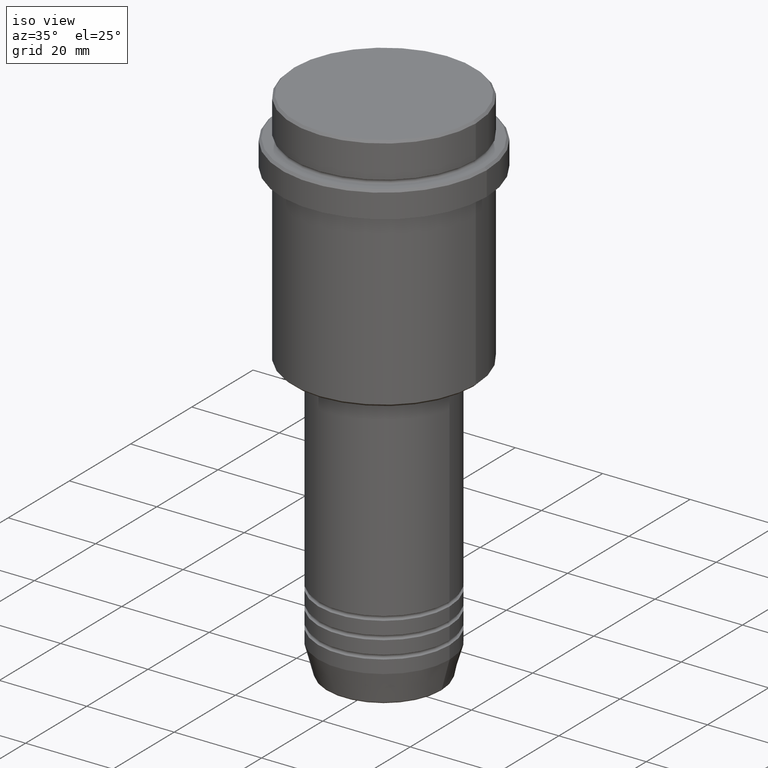
[diagram: clean part render]
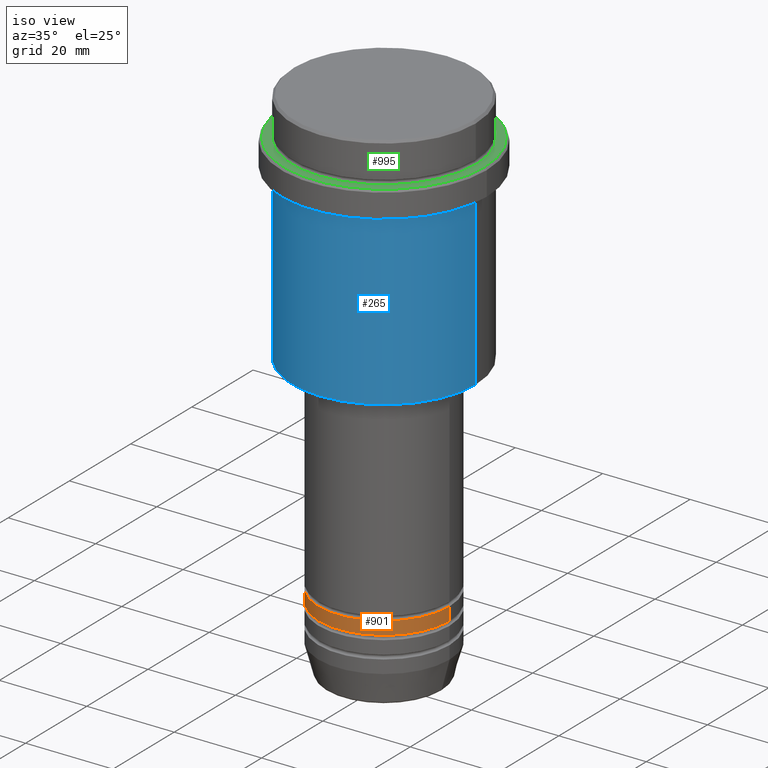
[diagram: same view with three faces highlighted in distinct colors, each labeled with its STEP entity id]
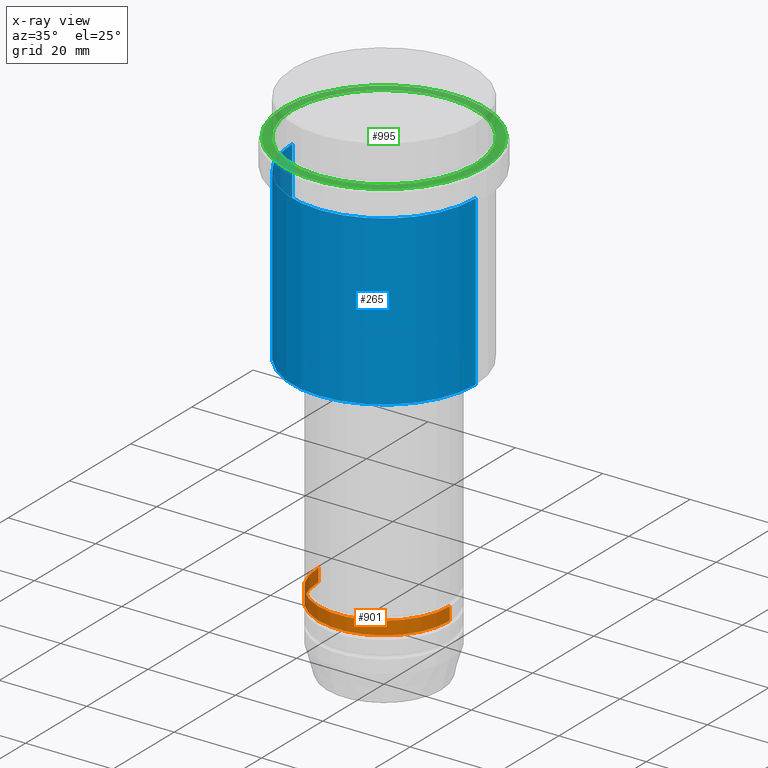
[diagram: x-ray of the same camera — body ghosted, the three highlighted faces saturated]
A machine part, iso view with three faces highlighted in distinct colors.
The next image is the same camera in x-ray (body ghosted, the three faces saturated) — at least one of them is partly hidden behind the body in this view.
Their STEP definitions:

[orange] entity #901 — the highlighted cylindrical surface (partial cylindrical patch) has radius 15 mm, axis along (-0, -0, 1).
#8 = DIRECTION ( 'NONE',  ( 1.000000000000000000, 0.000000000000000000, 0.000000000000000000 ) ) ;
#28 = CARTESIAN_POINT ( 'NONE',  ( 15.00000000000000000, 0.000000000000000000, -104.9999999999999005 ) ) ;
#72 = DIRECTION ( 'NONE',  ( -0.000000000000000000, -0.000000000000000000, 1.000000000000000000 ) ) ;
#77 = VERTEX_POINT ( 'NONE', #28 ) ;
#112 = VECTOR ( 'NONE', #72, 1000.000000000000000 ) ;
#183 = CIRCLE ( 'NONE', #803, 15.00000000000000000 ) ;
#203 = EDGE_CURVE ( 'NONE', #77, #865, #1148, .T. ) ;
#224 = CYLINDRICAL_SURFACE ( 'NONE', #643, 15.00000000000000000 ) ;
#237 = CARTESIAN_POINT ( 'NONE',  ( 0.000000000000000000, 0.000000000000000000, -104.9999999999999005 ) ) ;
#239 = VERTEX_POINT ( 'NONE', #1385 ) ;
#273 = EDGE_CURVE ( 'NONE', #1222, #239, #417, .T. ) ;
#341 = VECTOR ( 'NONE', #952, 1000.000000000000000 ) ;
#388 = ORIENTED_EDGE ( 'NONE', *, *, #273, .F. ) ;
#397 = ORIENTED_EDGE ( 'NONE', *, *, #1354, .T. ) ;
#417 = LINE ( 'NONE', #630, #112 ) ;
#448 = DIRECTION ( 'NONE',  ( 1.000000000000000000, 0.000000000000000000, 0.000000000000000000 ) ) ;
#536 = FACE_OUTER_BOUND ( 'NONE', #1305, .T. ) ;
#599 = CIRCLE ( 'NONE', #939, 15.00000000000000000 ) ;
#630 = CARTESIAN_POINT ( 'NONE',  ( -15.00000000000000000, 1.836970198721029589E-15, 0.000000000000000000 ) ) ;
#643 = AXIS2_PLACEMENT_3D ( 'NONE', #780, #1091, #1322 ) ;
#654 = DIRECTION ( 'NONE',  ( -0.000000000000000000, -0.000000000000000000, 1.000000000000000000 ) ) ;
#780 = CARTESIAN_POINT ( 'NONE',  ( 0.000000000000000000, 0.000000000000000000, 0.000000000000000000 ) ) ;
#803 = AXIS2_PLACEMENT_3D ( 'NONE', #1112, #654, #448 ) ;
#833 = CARTESIAN_POINT ( 'NONE',  ( 15.00000000000000000, 0.000000000000000000, 0.000000000000000000 ) ) ;
#865 = VERTEX_POINT ( 'NONE', #1337 ) ;
#877 = EDGE_CURVE ( 'NONE', #239, #865, #183, .T. ) ;
#895 = DIRECTION ( 'NONE',  ( -0.000000000000000000, -0.000000000000000000, 1.000000000000000000 ) ) ;
#901 = ADVANCED_FACE ( 'NONE', ( #536 ), #224, .T. ) ;
#939 = AXIS2_PLACEMENT_3D ( 'NONE', #237, #895, #8 ) ;
#941 = ORIENTED_EDGE ( 'NONE', *, *, #877, .F. ) ;
#952 = DIRECTION ( 'NONE',  ( -0.000000000000000000, -0.000000000000000000, 1.000000000000000000 ) ) ;
#967 = CARTESIAN_POINT ( 'NONE',  ( -15.00000000000000000, 1.836970198721029589E-15, -104.9999999999999005 ) ) ;
#1045 = ORIENTED_EDGE ( 'NONE', *, *, #203, .T. ) ;
#1091 = DIRECTION ( 'NONE',  ( -0.000000000000000000, -0.000000000000000000, 1.000000000000000000 ) ) ;
#1112 = CARTESIAN_POINT ( 'NONE',  ( 0.000000000000000000, 0.000000000000000000, -101.9999999999999005 ) ) ;
#1148 = LINE ( 'NONE', #833, #341 ) ;
#1222 = VERTEX_POINT ( 'NONE', #967 ) ;
#1305 = EDGE_LOOP ( 'NONE', ( #388, #397, #1045, #941 ) ) ;
#1322 = DIRECTION ( 'NONE',  ( 1.000000000000000000, 0.000000000000000000, 0.000000000000000000 ) ) ;
#1337 = CARTESIAN_POINT ( 'NONE',  ( 15.00000000000000000, 0.000000000000000000, -101.9999999999999005 ) ) ;
#1354 = EDGE_CURVE ( 'NONE', #1222, #77, #599, .T. ) ;
#1385 = CARTESIAN_POINT ( 'NONE',  ( -15.00000000000000000, 1.836970198721029589E-15, -101.9999999999999005 ) ) ;

[blue] entity #265 — the highlighted cylindrical surface (partial cylindrical patch) has radius 21 mm, axis along (-0, -0, 1).
#39 = DIRECTION ( 'NONE',  ( -0.000000000000000000, -0.000000000000000000, 1.000000000000000000 ) ) ;
#47 = AXIS2_PLACEMENT_3D ( 'NONE', #1341, #911, #356 ) ;
#68 = CARTESIAN_POINT ( 'NONE',  ( -21.00000000000000000, 2.571758278209441661E-15, 0.000000000000000000 ) ) ;
#111 = CARTESIAN_POINT ( 'NONE',  ( 0.000000000000000000, 0.000000000000000000, -16.00000000000000355 ) ) ;
#122 = CARTESIAN_POINT ( 'NONE',  ( -21.00000000000000000, 2.571758278209441661E-15, -16.00000000000000355 ) ) ;
#132 = CARTESIAN_POINT ( 'NONE',  ( 21.00000000000000000, 0.000000000000000000, -54.49999999999999289 ) ) ;
#133 = DIRECTION ( 'NONE',  ( 1.000000000000000000, 0.000000000000000000, 0.000000000000000000 ) ) ;
#149 = EDGE_CURVE ( 'NONE', #947, #427, #499, .T. ) ;
#165 = ORIENTED_EDGE ( 'NONE', *, *, #728, .F. ) ;
#192 = DIRECTION ( 'NONE',  ( -0.000000000000000000, -0.000000000000000000, 1.000000000000000000 ) ) ;
#258 = ORIENTED_EDGE ( 'NONE', *, *, #149, .T. ) ;
#265 = ADVANCED_FACE ( 'NONE', ( #1155 ), #1274, .T. ) ;
#356 = DIRECTION ( 'NONE',  ( -1.000000000000000000, 0.000000000000000000, 0.000000000000000000 ) ) ;
#423 = LINE ( 'NONE', #68, #502 ) ;
#427 = VERTEX_POINT ( 'NONE', #132 ) ;
#499 = CIRCLE ( 'NONE', #47, 21.00000000000000000 ) ;
#502 = VECTOR ( 'NONE', #1075, 1000.000000000000000 ) ;
#517 = EDGE_CURVE ( 'NONE', #427, #811, #596, .T. ) ;
#524 = VECTOR ( 'NONE', #39, 1000.000000000000000 ) ;
#544 = DIRECTION ( 'NONE',  ( -0.000000000000000000, -0.000000000000000000, 1.000000000000000000 ) ) ;
#596 = LINE ( 'NONE', #1017, #524 ) ;
#728 = EDGE_CURVE ( 'NONE', #947, #1277, #423, .T. ) ;
#741 = ORIENTED_EDGE ( 'NONE', *, *, #517, .T. ) ;
#811 = VERTEX_POINT ( 'NONE', #1395 ) ;
#839 = CARTESIAN_POINT ( 'NONE',  ( 0.000000000000000000, 0.000000000000000000, 0.000000000000000000 ) ) ;
#871 = AXIS2_PLACEMENT_3D ( 'NONE', #111, #544, #133 ) ;
#885 = EDGE_LOOP ( 'NONE', ( #165, #258, #741, #1094 ) ) ;
#911 = DIRECTION ( 'NONE',  ( -0.000000000000000000, -0.000000000000000000, 1.000000000000000000 ) ) ;
#915 = CIRCLE ( 'NONE', #871, 21.00000000000000000 ) ;
#929 = AXIS2_PLACEMENT_3D ( 'NONE', #839, #192, #1265 ) ;
#947 = VERTEX_POINT ( 'NONE', #1224 ) ;
#1017 = CARTESIAN_POINT ( 'NONE',  ( 21.00000000000000000, 0.000000000000000000, 0.000000000000000000 ) ) ;
#1075 = DIRECTION ( 'NONE',  ( -0.000000000000000000, -0.000000000000000000, 1.000000000000000000 ) ) ;
#1094 = ORIENTED_EDGE ( 'NONE', *, *, #1300, .F. ) ;
#1155 = FACE_OUTER_BOUND ( 'NONE', #885, .T. ) ;
#1224 = CARTESIAN_POINT ( 'NONE',  ( -21.00000000000000000, 2.571758278209441661E-15, -54.49999999999999289 ) ) ;
#1265 = DIRECTION ( 'NONE',  ( 1.000000000000000000, 0.000000000000000000, 0.000000000000000000 ) ) ;
#1274 = CYLINDRICAL_SURFACE ( 'NONE', #929, 21.00000000000000000 ) ;
#1277 = VERTEX_POINT ( 'NONE', #122 ) ;
#1300 = EDGE_CURVE ( 'NONE', #1277, #811, #915, .T. ) ;
#1341 = CARTESIAN_POINT ( 'NONE',  ( 0.000000000000000000, 0.000000000000000000, -54.49999999999999289 ) ) ;
#1395 = CARTESIAN_POINT ( 'NONE',  ( 21.00000000000000000, 0.000000000000000000, -16.00000000000000355 ) ) ;

[green] entity #995 — the highlighted planar face has unit normal (0, -0, 1).
#9 = EDGE_LOOP ( 'NONE', ( #1327, #1394 ) ) ;
#88 = CARTESIAN_POINT ( 'NONE',  ( 0.000000000000000000, 0.000000000000000000, -9.000000000000000000 ) ) ;
#116 = CARTESIAN_POINT ( 'NONE',  ( 22.99999999999998224, 2.847303808017595350E-15, -9.000000000000000000 ) ) ;
#124 = VERTEX_POINT ( 'NONE', #584 ) ;
#139 = CIRCLE ( 'NONE', #688, 20.99999999999999289 ) ;
#151 = EDGE_LOOP ( 'NONE', ( #1057, #195 ) ) ;
#178 = DIRECTION ( 'NONE',  ( 1.000000000000000000, 0.000000000000000000, 0.000000000000000000 ) ) ;
#195 = ORIENTED_EDGE ( 'NONE', *, *, #1089, .T. ) ;
#211 = CARTESIAN_POINT ( 'NONE',  ( -20.99999999999999289, 2.571758278209440872E-15, -9.000000000000000000 ) ) ;
#233 = CIRCLE ( 'NONE', #644, 22.99999999999998224 ) ;
#276 = AXIS2_PLACEMENT_3D ( 'NONE', #690, #900, #1040 ) ;
#290 = CARTESIAN_POINT ( 'NONE',  ( 0.000000000000000000, 0.000000000000000000, -9.000000000000000000 ) ) ;
#487 = CARTESIAN_POINT ( 'NONE',  ( 0.000000000000000000, 20.49999999999999645, -9.000000000000000000 ) ) ;
#492 = PLANE ( 'NONE',  #547 ) ;
#514 = DIRECTION ( 'NONE',  ( -0.000000000000000000, -0.000000000000000000, 1.000000000000000000 ) ) ;
#523 = EDGE_CURVE ( 'NONE', #796, #956, #1192, .T. ) ;
#541 = DIRECTION ( 'NONE',  ( 1.000000000000000000, 0.000000000000000000, 0.000000000000000000 ) ) ;
#547 = AXIS2_PLACEMENT_3D ( 'NONE', #487, #898, #1022 ) ;
#563 = CARTESIAN_POINT ( 'NONE',  ( 0.000000000000000000, 0.000000000000000000, -9.000000000000000000 ) ) ;
#579 = FACE_BOUND ( 'NONE', #9, .T. ) ;
#584 = CARTESIAN_POINT ( 'NONE',  ( 20.99999999999999289, 0.000000000000000000, -9.000000000000000000 ) ) ;
#632 = DIRECTION ( 'NONE',  ( 1.000000000000000000, 0.000000000000000000, 0.000000000000000000 ) ) ;
#644 = AXIS2_PLACEMENT_3D ( 'NONE', #290, #514, #632 ) ;
#688 = AXIS2_PLACEMENT_3D ( 'NONE', #563, #1097, #541 ) ;
#690 = CARTESIAN_POINT ( 'NONE',  ( 0.000000000000000000, 0.000000000000000000, -9.000000000000000000 ) ) ;
#714 = CIRCLE ( 'NONE', #1078, 20.99999999999999289 ) ;
#717 = VERTEX_POINT ( 'NONE', #211 ) ;
#796 = VERTEX_POINT ( 'NONE', #1383 ) ;
#825 = FACE_OUTER_BOUND ( 'NONE', #151, .T. ) ;
#898 = DIRECTION ( 'NONE',  ( 0.000000000000000000, -0.000000000000000000, 1.000000000000000000 ) ) ;
#900 = DIRECTION ( 'NONE',  ( -0.000000000000000000, -0.000000000000000000, 1.000000000000000000 ) ) ;
#937 = EDGE_CURVE ( 'NONE', #717, #124, #139, .T. ) ;
#956 = VERTEX_POINT ( 'NONE', #116 ) ;
#995 = ADVANCED_FACE ( 'NONE', ( #825, #579 ), #492, .T. ) ;
#1022 = DIRECTION ( 'NONE',  ( 1.000000000000000000, 0.000000000000000000, 0.000000000000000000 ) ) ;
#1040 = DIRECTION ( 'NONE',  ( 1.000000000000000000, 0.000000000000000000, 0.000000000000000000 ) ) ;
#1057 = ORIENTED_EDGE ( 'NONE', *, *, #523, .T. ) ;
#1078 = AXIS2_PLACEMENT_3D ( 'NONE', #88, #1299, #178 ) ;
#1089 = EDGE_CURVE ( 'NONE', #956, #796, #233, .T. ) ;
#1097 = DIRECTION ( 'NONE',  ( 0.000000000000000000, 0.000000000000000000, -1.000000000000000000 ) ) ;
#1143 = EDGE_CURVE ( 'NONE', #124, #717, #714, .T. ) ;
#1192 = CIRCLE ( 'NONE', #276, 22.99999999999998224 ) ;
#1299 = DIRECTION ( 'NONE',  ( 0.000000000000000000, 0.000000000000000000, -1.000000000000000000 ) ) ;
#1327 = ORIENTED_EDGE ( 'NONE', *, *, #1143, .T. ) ;
#1383 = CARTESIAN_POINT ( 'NONE',  ( -22.99999999999998224, 0.000000000000000000, -9.000000000000000000 ) ) ;
#1394 = ORIENTED_EDGE ( 'NONE', *, *, #937, .T. ) ;